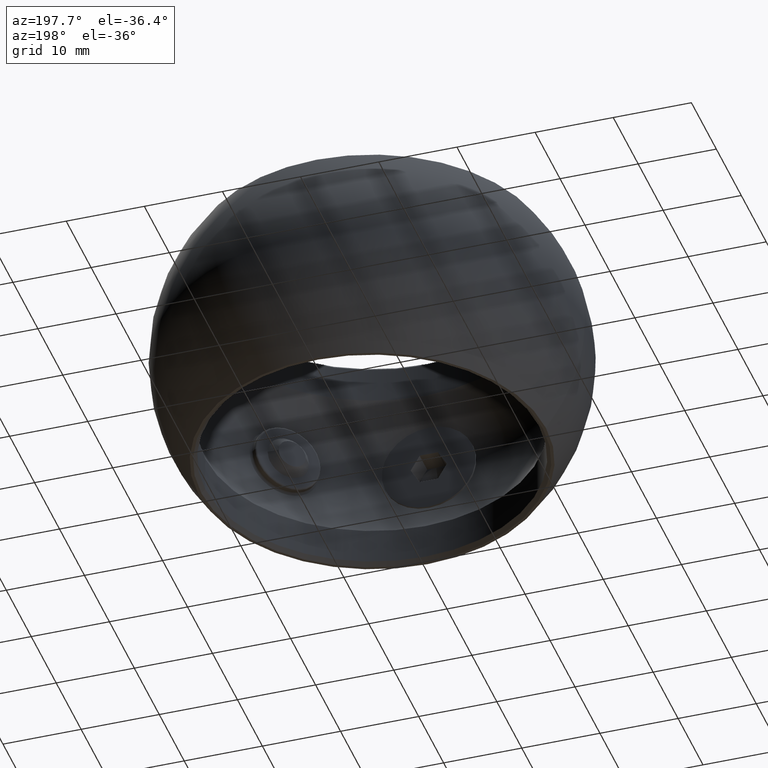
[diagram: clean part render]
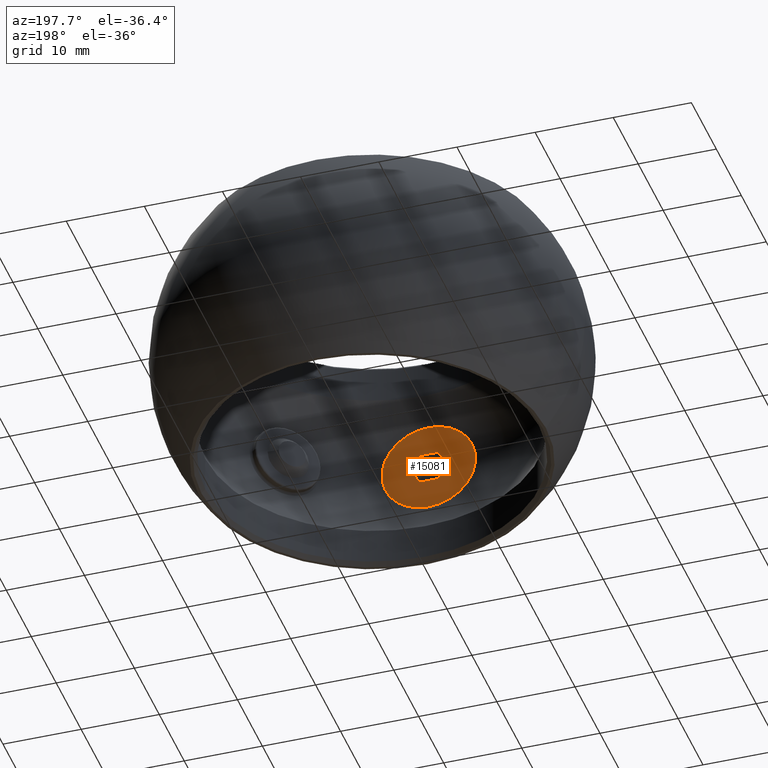
[diagram: same view with one face highlighted and labeled with its STEP entity id]
A machine part, auxiliary view. The second image highlights one B-rep face of the part: STEP entity #15081.
In plain terms, the highlighted planar face has unit normal (-0, 1, 0).
Its self-contained STEP definition (entity closure, byte-faithful):
#32 = CARTESIAN_POINT ( 'NONE',  ( 0.000000000000000000, 1.199807826129486086E-31, -9.797174393178825657E-16 ) ) ;
#159 = DIRECTION ( 'NONE',  ( -1.000000000000000000, 0.000000000000000000, 0.000000000000000000 ) ) ;
#341 = CARTESIAN_POINT ( 'NONE',  ( 2.309401076758502480, 8.715826672874822576E-18, 0.000000000000000000 ) ) ;
#405 = CARTESIAN_POINT ( 'NONE',  ( 2.309401076758502480, 8.715826672874822576E-18, 0.000000000000000000 ) ) ;
#637 = DIRECTION ( 'NONE',  ( 0.000000000000000000, 1.000000000000000000, 1.224646799147353207E-16 ) ) ;
#943 = VECTOR ( 'NONE', #3093, 1000.000000000000000 ) ;
#2119 = LINE ( 'NONE', #341, #8684 ) ;
#2404 = VECTOR ( 'NONE', #3182, 1000.000000000000114 ) ;
#2638 = FACE_BOUND ( 'NONE', #7084, .T. ) ;
#2854 = LINE ( 'NONE', #8264, #15012 ) ;
#2873 = FACE_OUTER_BOUND ( 'NONE', #12576, .T. ) ;
#3011 = VERTEX_POINT ( 'NONE', #12270 ) ;
#3093 = DIRECTION ( 'NONE',  ( -0.4999999999999997224, 0.8660254037844388186, 0.000000000000000000 ) ) ;
#3182 = DIRECTION ( 'NONE',  ( 0.5000000000000003331, 0.8660254037844383745, 0.000000000000000000 ) ) ;
#3309 = DIRECTION ( 'NONE',  ( -0.000000000000000000, 1.224646799147353207E-16, -1.000000000000000000 ) ) ;
#3657 = DIRECTION ( 'NONE',  ( -0.5000000000000000000, -0.8660254037844385966, -0.000000000000000000 ) ) ;
#3890 = AXIS2_PLACEMENT_3D ( 'NONE', #17756, #3309, #11464 ) ;
#4554 = CARTESIAN_POINT ( 'NONE',  ( -1.154700538379252350, -2.000000000000000000, 0.000000000000000000 ) ) ;
#4831 = CARTESIAN_POINT ( 'NONE',  ( -1.154700538379251018, 2.000000000000000000, 0.000000000000000000 ) ) ;
#4950 = DIRECTION ( 'NONE',  ( -0.000000000000000000, 1.224646799147353207E-16, -1.000000000000000000 ) ) ;
#5245 = ORIENTED_EDGE ( 'NONE', *, *, #11006, .F. ) ;
#5768 = CARTESIAN_POINT ( 'NONE',  ( -2.309401076758503368, 8.673617379884035472E-16, -4.898587196589411843E-16 ) ) ;
#6490 = CARTESIAN_POINT ( 'NONE',  ( 1.154700538379251240, 1.999999999999999556, 0.000000000000000000 ) ) ;
#6572 = PLANE ( 'NONE',  #14734 ) ;
#6754 = VERTEX_POINT ( 'NONE', #9051 ) ;
#7084 = EDGE_LOOP ( 'NONE', ( #10714, #20731, #20030, #5245, #14394, #18625 ) ) ;
#7750 = VECTOR ( 'NONE', #11778, 999.9999999999998863 ) ;
#8206 = AXIS2_PLACEMENT_3D ( 'NONE', #32, #14453, #19170 ) ;
#8264 = CARTESIAN_POINT ( 'NONE',  ( 1.154700538379250796, -2.000000000000000000, -0.000000000000000000 ) ) ;
#8498 = CARTESIAN_POINT ( 'NONE',  ( 1.154700538379251240, 1.999999999999999556, 0.000000000000000000 ) ) ;
#8684 = VECTOR ( 'NONE', #3657, 1000.000000000000227 ) ;
#9051 = CARTESIAN_POINT ( 'NONE',  ( 0.000000000000000000, 6.000000000000000000, -2.449293598294705921E-16 ) ) ;
#9123 = CARTESIAN_POINT ( 'NONE',  ( -1.154700538379251018, 2.000000000000000000, 0.000000000000000000 ) ) ;
#9128 = VERTEX_POINT ( 'NONE', #6490 ) ;
#9968 = EDGE_CURVE ( 'NONE', #11176, #15730, #18646, .T. ) ;
#10033 = VERTEX_POINT ( 'NONE', #19623 ) ;
#10714 = ORIENTED_EDGE ( 'NONE', *, *, #9968, .F. ) ;
#10769 = DIRECTION ( 'NONE',  ( 1.000000000000000000, -1.877893248421449775E-16, 0.000000000000000000 ) ) ;
#11006 = EDGE_CURVE ( 'NONE', #9128, #16847, #11568, .T. ) ;
#11045 = LINE ( 'NONE', #9123, #14101 ) ;
#11176 = VERTEX_POINT ( 'NONE', #4554 ) ;
#11464 = DIRECTION ( 'NONE',  ( 0.000000000000000000, 1.000000000000000000, 1.224646799147353207E-16 ) ) ;
#11568 = LINE ( 'NONE', #8498, #7750 ) ;
#11607 = EDGE_CURVE ( 'NONE', #11844, #9128, #11045, .T. ) ;
#11778 = DIRECTION ( 'NONE',  ( 0.4999999999999999445, -0.8660254037844387076, 0.000000000000000000 ) ) ;
#11844 = VERTEX_POINT ( 'NONE', #4831 ) ;
#12104 = ORIENTED_EDGE ( 'NONE', *, *, #20551, .T. ) ;
#12270 = CARTESIAN_POINT ( 'NONE',  ( 1.154700538379250796, -2.000000000000000000, -0.000000000000000000 ) ) ;
#12576 = EDGE_LOOP ( 'NONE', ( #12104, #15834 ) ) ;
#13042 = CARTESIAN_POINT ( 'NONE',  ( 0.000000000000000000, 6.000000000000000000, 2.449293598294706907E-16 ) ) ;
#14101 = VECTOR ( 'NONE', #10769, 1000.000000000000000 ) ;
#14394 = ORIENTED_EDGE ( 'NONE', *, *, #11607, .F. ) ;
#14453 = DIRECTION ( 'NONE',  ( -0.000000000000000000, 1.224646799147353207E-16, -1.000000000000000000 ) ) ;
#14696 = EDGE_CURVE ( 'NONE', #10033, #6754, #16788, .T. ) ;
#14734 = AXIS2_PLACEMENT_3D ( 'NONE', #13042, #4950, #637 ) ;
#14859 = EDGE_CURVE ( 'NONE', #16847, #3011, #2119, .T. ) ;
#15012 = VECTOR ( 'NONE', #159, 1000.000000000000000 ) ;
#15081 = ADVANCED_FACE ( 'NONE', ( #2638, #2873 ), #6572, .T. ) ;
#15730 = VERTEX_POINT ( 'NONE', #5768 ) ;
#15834 = ORIENTED_EDGE ( 'NONE', *, *, #14696, .T. ) ;
#16232 = EDGE_CURVE ( 'NONE', #3011, #11176, #2854, .T. ) ;
#16788 = CIRCLE ( 'NONE', #3890, 6.000000000000000000 ) ;
#16790 = CIRCLE ( 'NONE', #8206, 6.000000000000000000 ) ;
#16827 = LINE ( 'NONE', #17771, #2404 ) ;
#16847 = VERTEX_POINT ( 'NONE', #405 ) ;
#17756 = CARTESIAN_POINT ( 'NONE',  ( 0.000000000000000000, 1.199807826129486086E-31, -9.797174393178825657E-16 ) ) ;
#17771 = CARTESIAN_POINT ( 'NONE',  ( -2.309401076758503368, 4.393063846442272751E-16, 0.000000000000000000 ) ) ;
#18625 = ORIENTED_EDGE ( 'NONE', *, *, #19103, .F. ) ;
#18646 = LINE ( 'NONE', #19483, #943 ) ;
#19103 = EDGE_CURVE ( 'NONE', #15730, #11844, #16827, .T. ) ;
#19170 = DIRECTION ( 'NONE',  ( 0.000000000000000000, 1.000000000000000000, 1.224646799147353207E-16 ) ) ;
#19483 = CARTESIAN_POINT ( 'NONE',  ( -1.154700538379252350, -2.000000000000000000, 0.000000000000000000 ) ) ;
#19623 = CARTESIAN_POINT ( 'NONE',  ( 7.347880794884119736E-16, -6.000000000000000000, -1.714505518806294638E-15 ) ) ;
#20030 = ORIENTED_EDGE ( 'NONE', *, *, #14859, .F. ) ;
#20551 = EDGE_CURVE ( 'NONE', #6754, #10033, #16790, .T. ) ;
#20731 = ORIENTED_EDGE ( 'NONE', *, *, #16232, .F. ) ;